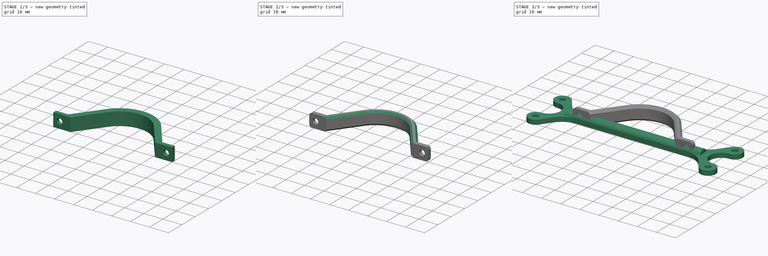
[diagram: build sequence overview — one tinted view per stage of 3, left to right]
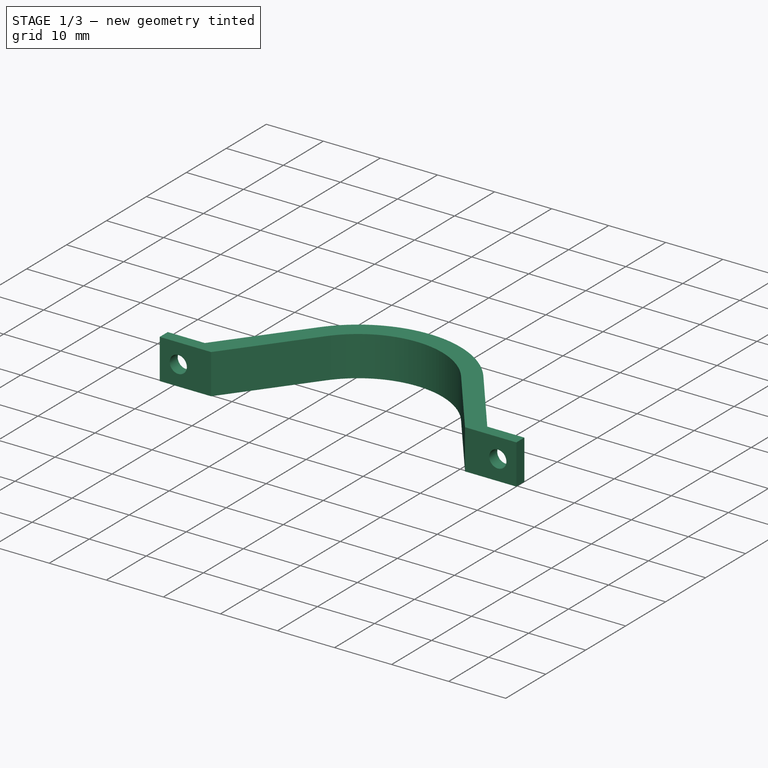
[diagram: stage 1 of 3 — iso view after this stage's code; geometry added in this stage tinted green]
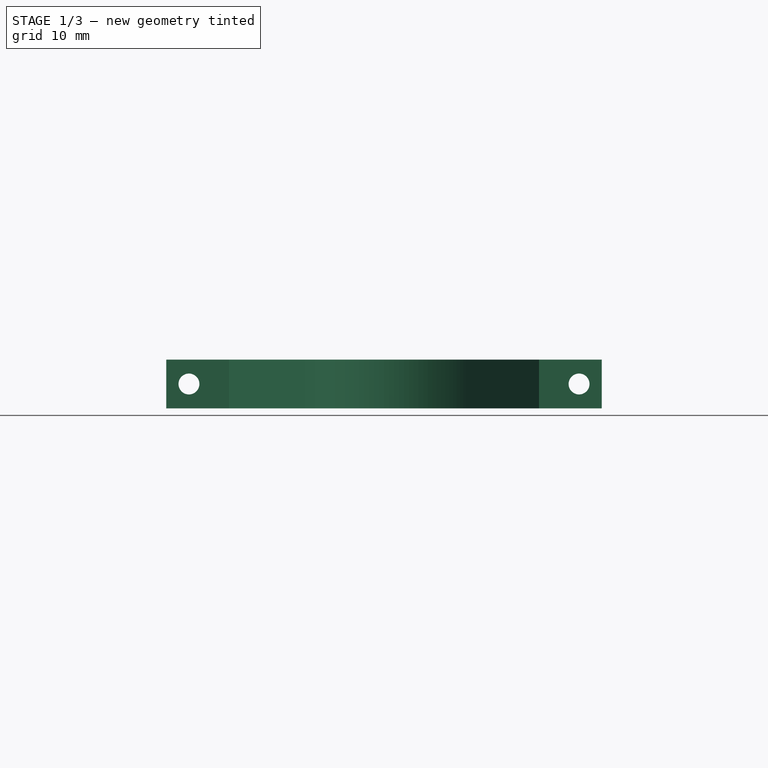
[diagram: stage 1 of 3 — front view after this stage's code; geometry added in this stage tinted green]
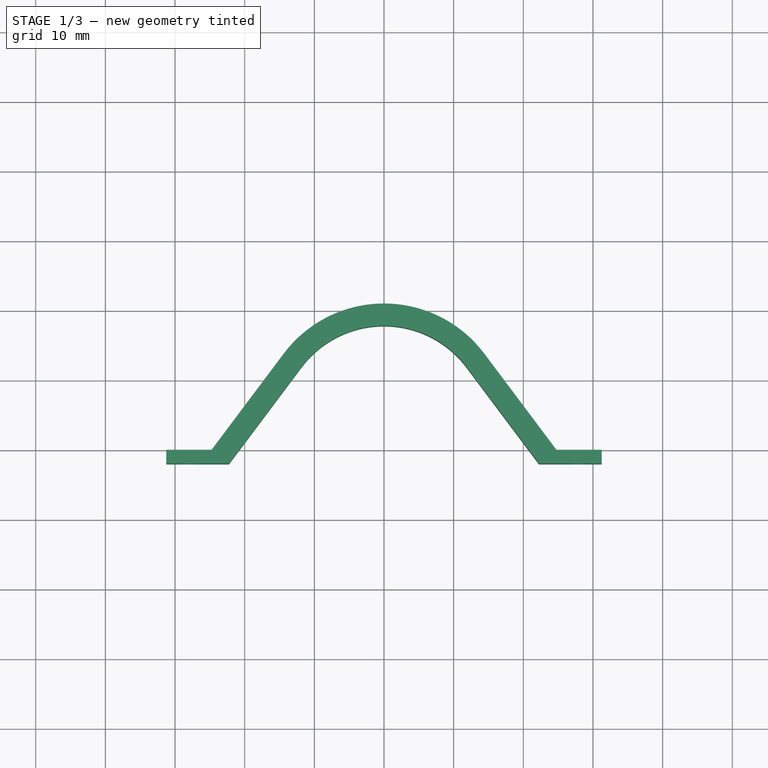
[diagram: stage 1 of 3 — top view after this stage's code; geometry added in this stage tinted green]
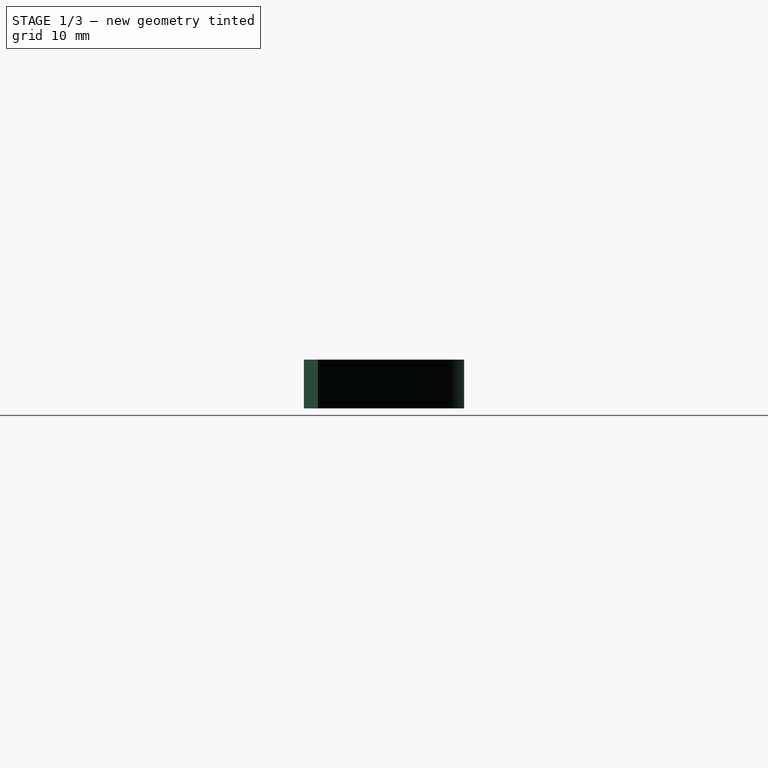
[diagram: stage 1 of 3 — right view after this stage's code; geometry added in this stage tinted green]
FCSTD DOCUMENT  (FreeCAD 0.20R29177 +426 (Git))
Label: turtle_fin
License: All rights reserved
LicenseURL: http://en.wikipedia.org/wiki/All_rights_reserved
objects: Sketcher::SketchObject×4, PartDesign::Pad×3, PartDesign::Body×2, PartDesign::Pocket×1, PartDesign::Fillet×1, PartDesign::Chamfer×1
note: 18 computed .brp shape members not serialized (recipe doc carries the construction recipe); baked Part::Feature solids carry a one-line shape summary decoded from their .brp

FEATURE [Sketcher::SketchObject] Sketch001  label="fin"
  FullyConstrained = true
  MapMode = 5
  Support = -> [XY_Plane]
  sketch-geometry (14):
    g0: LineSegment StartX=-31.25 StartY=0 StartZ=0 EndX=-24.75 EndY=0 EndZ=0
    g1: LineSegment StartX=24.75 StartY=0 StartZ=0 EndX=31.25 EndY=0 EndZ=0
    g2: LineSegment StartX=-31.25 StartY=0 StartZ=0 EndX=-31.25 EndY=-2 EndZ=0
    g3: LineSegment StartX=-31.25 StartY=-2 StartZ=0 EndX=-22.25 EndY=-2 EndZ=0
    g4: LineSegment StartX=31.25 StartY=0 StartZ=0 EndX=31.25 EndY=-2 EndZ=0
    g5: LineSegment StartX=31.25 StartY=-2 StartZ=0 EndX=22.25 EndY=-2 EndZ=0
    g6: GeomPoint X=-28 Y=0 Z=0
    g7: GeomPoint X=28 Y=0 Z=0
    g8: LineSegment StartX=-24.75 StartY=0 StartZ=0 EndX=-14.4 EndY=13.8 EndZ=0
    g9: LineSegment StartX=-22.25 StartY=-2 StartZ=0 EndX=-11.84 EndY=11.88 EndZ=0
    g10: LineSegment StartX=22.25 StartY=-2 StartZ=0 EndX=11.84 EndY=11.88 EndZ=0
    g11: LineSegment StartX=24.75 StartY=0 StartZ=0 EndX=14.4 EndY=13.8 EndZ=0
    g12: ArcOfCircle CenterX=0 CenterY=3 CenterZ=0 NormalX=0 NormalY=0 NormalZ=1 AngleXU=0 Radius=18 StartAngle=0.643501 EndAngle=2.49809
    g13: ArcOfCircle CenterX=0 CenterY=3 CenterZ=0 NormalX=0 NormalY=0 NormalZ=1 AngleXU=0 Radius=14.8 StartAngle=0.643501 EndAngle=2.49809
  constraints (35):
    c: PointOnObject(g0,g-1)
    c: Coincident(g2,g0)
    c: Vertical(g2)
    c: Coincident(g3,g2)
    c: Horizontal(g3)
    c: Distance(g3) = 9
    c: PointOnObject(g0,g-1)
    c: Distance(g2) = 2
    c: Coincident(g4,g1)
    c: Vertical(g4)
    c: Horizontal(g5)
    c: Coincident(g5,g4)
    c: PointOnObject(g1,g-1)
    c: Equal(g5,g3)
    c: Equal(g4,g2)
    c: Symmetric(g1,g1,g7)
    c: Symmetric(g0,g0,g6)
    c: Distance(g6,g7) = 56
    c: DistanceX(g0,g3) = 2.5
    c: PointOnObject(g1,g-1)
    c: Coincident(g8,g0)
    c: Coincident(g9,g3)
    c: Coincident(g10,g5)
    c: Coincident(g11,g1)
    c: Tangent(g13,g9) = 1.5708
    c: Tangent(g12,g8) = 1.5708
    c: Tangent(g13,g10) = -1.5708
    c: Tangent(g12,g11) = -1.5708
    c: PointOnObject(g12,g-2)
    c: Coincident(g12,g13)
    c: Parallel(g9,g8)
    c: Equal(g9,g10)
    c: Equal(g11,g8)
    c: Radius(g12) = 18
    c: DistanceY(g3,g12) = 5
FEATURE [PartDesign::Pad] Pad
  Direction = (0,0,1)
  Length = 7
  Length2 = 10
  Profile = -> Sketch001
  ReferenceAxis = -> Sketch001 [N_Axis]
  Type = 0
FEATURE [Sketcher::SketchObject] Sketch002
  ExternalGeometry = -> [Pad]
  FullyConstrained = true
  MapMode = 45
  Placement = pos=(0,-2,3.5) rot=(0.57735,0.57735,0.57735;4.18879rad)
  Support = -> [Pad]
  sketch-geometry (2):
    g0: Circle CenterX=1.1e-15 CenterY=28 CenterZ=0 NormalX=0 NormalY=0 NormalZ=1 AngleXU=0 Radius=1.5
    g1: Circle CenterX=1.1e-15 CenterY=-28 CenterZ=0 NormalX=0 NormalY=0 NormalZ=1 AngleXU=0 Radius=1.5
  constraints (4):
    c: Equal(g1,g0)
    c: Radius(g0) = 1.5
    c: Symmetric(g-3,g-5,g0)
    c: Symmetric(g0,g1,g-1)
FEATURE [PartDesign::Pocket] Pocket
  BaseFeature = -> Pad
  Direction = (0,-1,0)
  Length = 5
  Length2 = 5
  Midplane = true
  Profile = -> Sketch002
  ReferenceAxis = -> Sketch002 [N_Axis]
  Type = 1
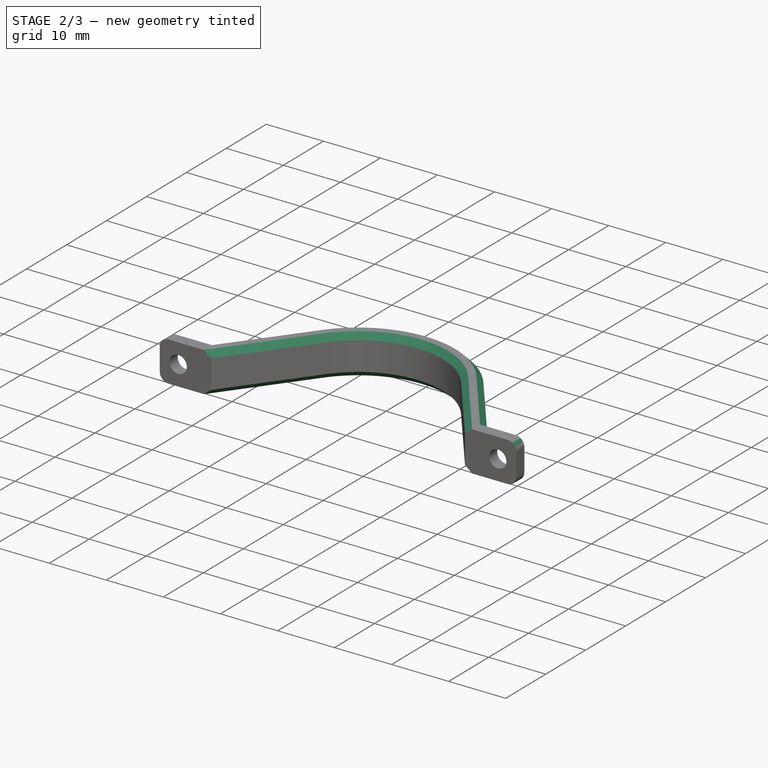
[diagram: stage 2 of 3 — iso view after this stage's code; geometry added in this stage tinted green]
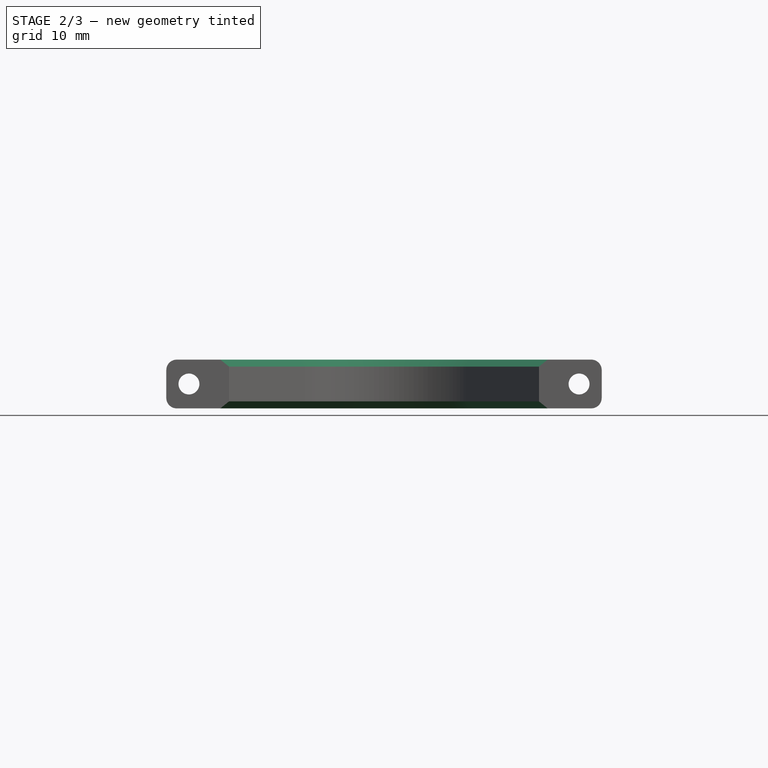
[diagram: stage 2 of 3 — front view after this stage's code; geometry added in this stage tinted green]
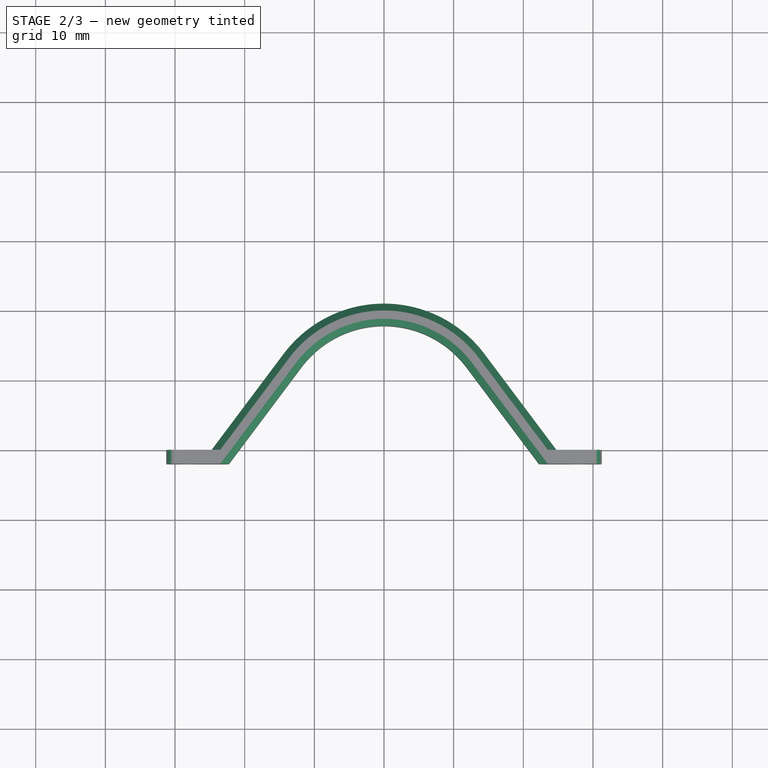
[diagram: stage 2 of 3 — top view after this stage's code; geometry added in this stage tinted green]
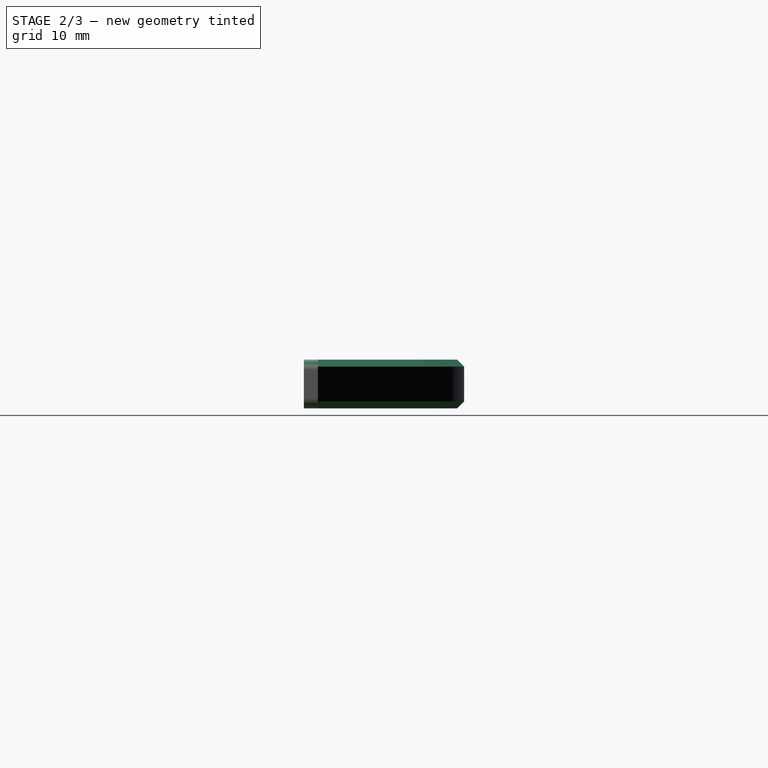
[diagram: stage 2 of 3 — right view after this stage's code; geometry added in this stage tinted green]
FEATURE [PartDesign::Body] Body001  label="turtle_fin_v2"
  Group = -> [Sketch003,Pad001,Sketch004,Pad002]
  Origin = -> Origin001
  Tip = -> Pad002
FEATURE [PartDesign::Fillet] Fillet
  Base = -> Pocket [Edge17,Edge26,Edge3,Edge4]
  BaseFeature = -> Pocket
  Radius = 1.5
  SupportTransform = false
  UseAllEdges = false
FEATURE [PartDesign::Chamfer] Chamfer
  Angle = 45
  Base = -> Fillet [Edge25,Edge23,Edge21,Edge30,Edge32,Edge34,Edge19,Edge20,Edge22,Edge29,Edge28,Edge31]
  BaseFeature = -> Fillet
  ChamferType = 0
  FlipDirection = false
  Size = 1
  Size2 = 1
  SupportTransform = false
  UseAllEdges = false
FEATURE [PartDesign::Body] Body  label="turtle_fin"
  Group = -> [Sketch001,Pad,Sketch002,Pocket,Fillet,Chamfer]
  Origin = -> Origin
  Tip = -> Chamfer
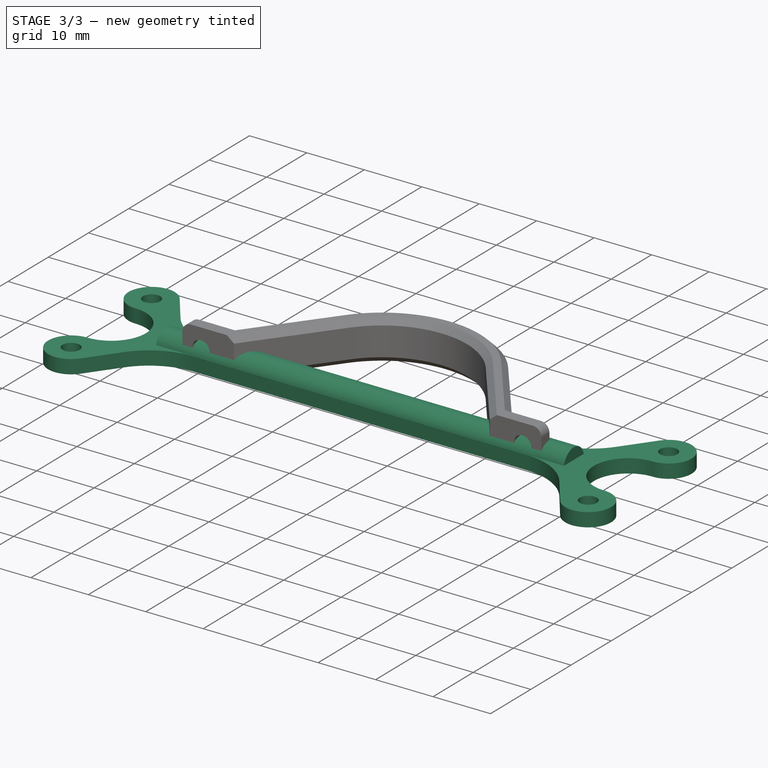
[diagram: stage 3 of 3 — iso view after this stage's code; geometry added in this stage tinted green]
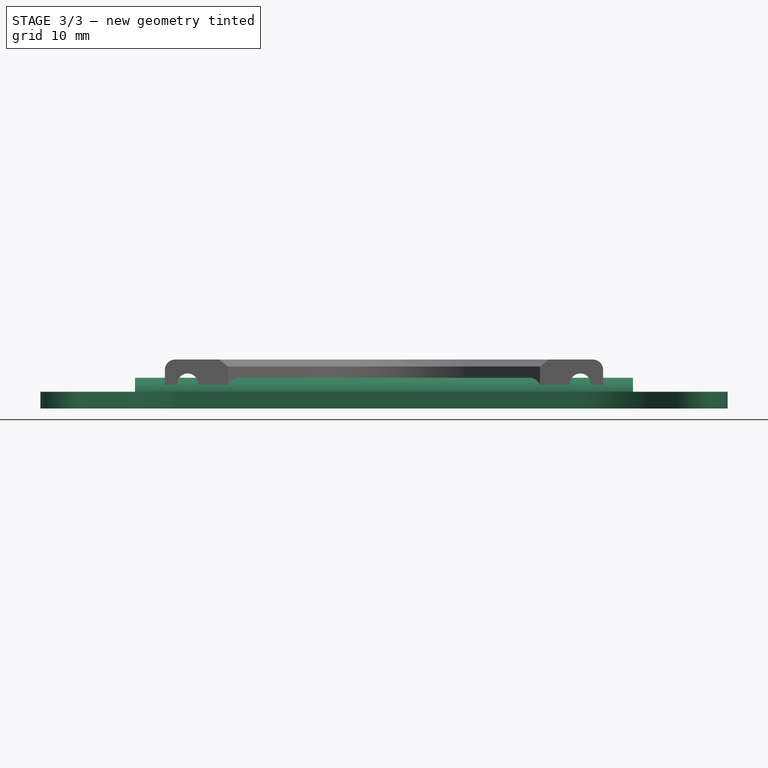
[diagram: stage 3 of 3 — front view after this stage's code; geometry added in this stage tinted green]
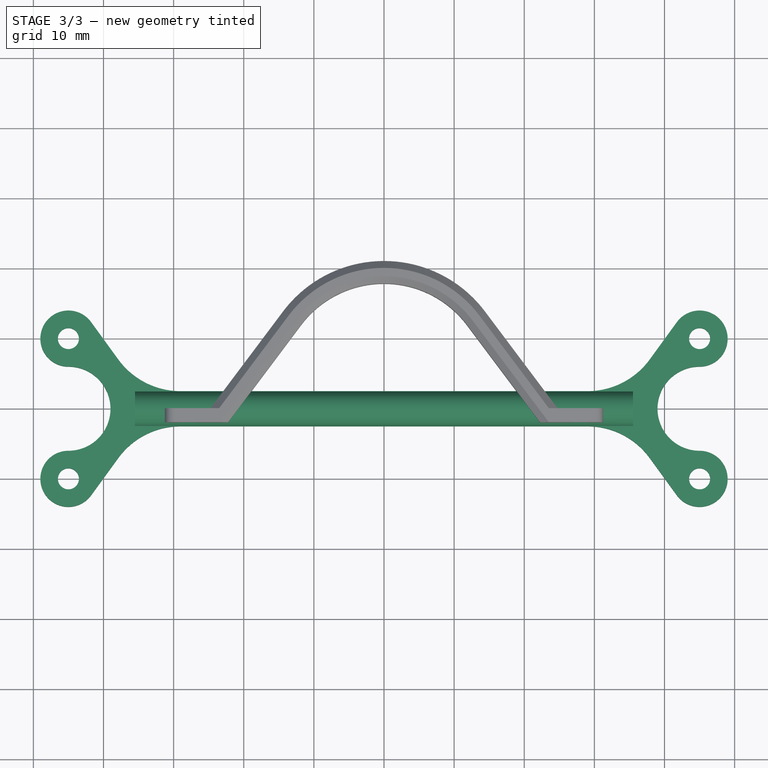
[diagram: stage 3 of 3 — top view after this stage's code; geometry added in this stage tinted green]
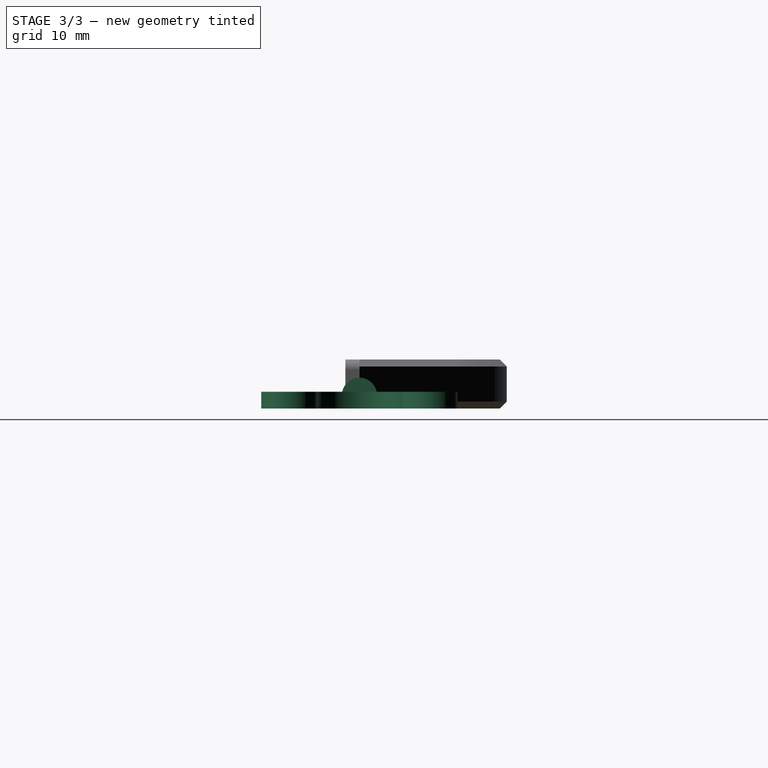
[diagram: stage 3 of 3 — right view after this stage's code; geometry added in this stage tinted green]
FEATURE [Sketcher::SketchObject] Sketch003
  FullyConstrained = true
  MapMode = 5
  Support = -> [XY_Plane001]
  sketch-geometry (20):
    g0: Circle CenterX=-45 CenterY=10 CenterZ=0 NormalX=0 NormalY=0 NormalZ=1 AngleXU=0 Radius=1.5
    g1: Circle CenterX=-45 CenterY=-10 CenterZ=0 NormalX=0 NormalY=0 NormalZ=1 AngleXU=0 Radius=1.5
    g2: Circle CenterX=45 CenterY=10 CenterZ=0 NormalX=0 NormalY=0 NormalZ=1 AngleXU=0 Radius=1.5
    g3: Circle CenterX=45 CenterY=-10 CenterZ=0 NormalX=0 NormalY=0 NormalZ=1 AngleXU=0 Radius=1.5
    g4: ArcOfCircle CenterX=45 CenterY=-10 CenterZ=0 NormalX=0 NormalY=0 NormalZ=1 AngleXU=0 Radius=4 StartAngle=3.77014 EndAngle=7.85398
    g5: ArcOfCircle CenterX=45 CenterY=10 CenterZ=0 NormalX=0 NormalY=0 NormalZ=1 AngleXU=0 Radius=4 StartAngle=4.71239 EndAngle=8.79623
    g6: ArcOfCircle CenterX=-45 CenterY=10 CenterZ=0 NormalX=0 NormalY=0 NormalZ=1 AngleXU=0 Radius=4 StartAngle=0.62855 EndAngle=4.71239
    g7: ArcOfCircle CenterX=-45 CenterY=-10 CenterZ=0 NormalX=0 NormalY=0 NormalZ=1 AngleXU=0 Radius=4 StartAngle=1.5708 EndAngle=5.65464
    g8: ArcOfCircle CenterX=-45 CenterY=1e-16 CenterZ=0 NormalX=0 NormalY=0 NormalZ=1 AngleXU=0 Radius=6 StartAngle=4.71239 EndAngle=7.85398
    g9: ArcOfCircle CenterX=45 CenterY=1e-16 CenterZ=0 NormalX=0 NormalY=0 NormalZ=1 AngleXU=0 Radius=6 StartAngle=1.5708 EndAngle=4.71239
    g10: LineSegment StartX=-41.7645 StartY=-12.3519 StartZ=0 EndX=-37.8977 EndY=-7.0323 EndZ=0
    g11: LineSegment StartX=-41.7645 StartY=12.3519 StartZ=0 EndX=-37.8977 EndY=7.0323 EndZ=0
    g12: LineSegment StartX=41.7645 StartY=12.3519 StartZ=0 EndX=37.8977 EndY=7.0323 EndZ=0
    g13: LineSegment StartX=41.7645 StartY=-12.3519 StartZ=0 EndX=37.8977 EndY=-7.0323 EndZ=0
    g14: ArcOfCircle CenterX=-29 CenterY=13.5 CenterZ=0 NormalX=0 NormalY=0 NormalZ=1 AngleXU=0 Radius=11 StartAngle=3.77014 EndAngle=4.71239
    g15: ArcOfCircle CenterX=-29 CenterY=-13.5 CenterZ=0 NormalX=0 NormalY=0 NormalZ=1 AngleXU=0 Radius=11 StartAngle=1.5708 EndAngle=2.51304
    g16: ArcOfCircle CenterX=29 CenterY=-13.5 CenterZ=0 NormalX=0 NormalY=0 NormalZ=1 AngleXU=0 Radius=11 StartAngle=0.62855 EndAngle=1.5708
    g17: ArcOfCircle CenterX=29 CenterY=13.5 CenterZ=0 NormalX=0 NormalY=0 NormalZ=1 AngleXU=0 Radius=11 StartAngle=4.71239 EndAngle=5.65464
    g18: LineSegment StartX=-29 StartY=-2.5 StartZ=0 EndX=29 EndY=-2.5 EndZ=0
    g19: LineSegment StartX=29 StartY=2.5 StartZ=0 EndX=-29 EndY=2.5 EndZ=0
  constraints (43):
    c: Coincident(g4,g3)
    c: Coincident(g5,g2)
    c: Coincident(g6,g0)
    c: Coincident(g7,g1)
    c: Symmetric(g3,g1,g-2)
    c: Symmetric(g2,g0,g-2)
    c: Symmetric(g1,g0,g-1)
    c: Distance(g0,g1) = 20
    c: Radius(g1) = 1.5
    c: Radius(g7) = 4
    c: Equal(g1,g0)
    c: Equal(g0,g2)
    c: Equal(g2,g3)
    c: Equal(g6,g7)
    c: Equal(g7,g5)
    c: DistanceX(g1,g3) = 90
    c: Symmetric(g9,g8,g-2)
    c: Symmetric(g13,g10,g-2)
    c: Symmetric(g12,g11,g-2)
    c: Symmetric(g10,g11,g-1)
    c: Tangent(g16,g13) = -1.5708
    c: Tangent(g17,g12) = 1.5708
    c: Tangent(g15,g10) = 1.5708
    c: Tangent(g14,g11) = -1.5708
    c: Vertical(g14,g15)
    c: Horizontal(g18)
    c: Horizontal(g19)
    c: Tangent(g18,g15) = 1.5708
    c: Tangent(g19,g14) = 1.5708
    c: Tangent(g19,g17) = 1.5708
    c: Tangent(g18,g16) = 1.5708
    c: Distance(g15,g14) = 5
    c: Radius(g15) = 11
    c: DistanceX(g1,g15) = 16
    c: Tangent(g6,g8) = 1.5708
    c: Tangent(g6,g11) = 1.5708
    c: Tangent(g7,g10) = -1.5708
    c: Tangent(g7,g8) = 1.5708
    c: Tangent(g4,g13) = 1.5708
    c: Tangent(g5,g12) = -1.5708
    c: Tangent(g4,g9) = 1.5708
    c: Tangent(g5,g9) = 1.5708
    c: Vertical(g8,g1)
FEATURE [PartDesign::Pad] Pad001
  Direction = (0,0,1)
  Length = 2.4
  Length2 = 10
  Profile = -> Sketch003
  ReferenceAxis = -> Sketch003 [N_Axis]
  Type = 0
FEATURE [Sketcher::SketchObject] Sketch004
  ExternalGeometry = -> [Pad001]
  FullyConstrained = true
  MapMode = 5
  Placement = pos=(0,0,0) rot=(0.57735,0.57735,0.57735;2.0944rad)
  Support = -> [YZ_Plane001]
  sketch-geometry (3):
    g0: LineSegment StartX=-2.5 StartY=2.4 StartZ=0 EndX=2.5 EndY=2.4 EndZ=0
    g1: ArcOfCircle CenterX=1e-16 CenterY=1.9 CenterZ=0 NormalX=0 NormalY=0 NormalZ=1 AngleXU=0 Radius=2.5 StartAngle=0.201358 EndAngle=2.94023
    g2: LineSegment StartX=2.44949 StartY=2.4 StartZ=0 EndX=-2.44949 EndY=2.4 EndZ=0
  constraints (8):
    c: Coincident(g0,g-4)
    c: Coincident(g0,g-3)
    c: PointOnObject(g1,g0)
    c: Symmetric(g1,g1,g-2)
    c: Radius(g1) = 2.5
    c: Distance(g1,g0) = 0.5
    c: Coincident(g2,g1)
    c: Coincident(g2,g1)
FEATURE [PartDesign::Pad] Pad002
  BaseFeature = -> Pad001
  Direction = (1,-2e-16,3e-16)
  Length = 71
  Length2 = 10
  Midplane = true
  Profile = -> Sketch004
  ReferenceAxis = -> Sketch004 [N_Axis]
  Type = 0
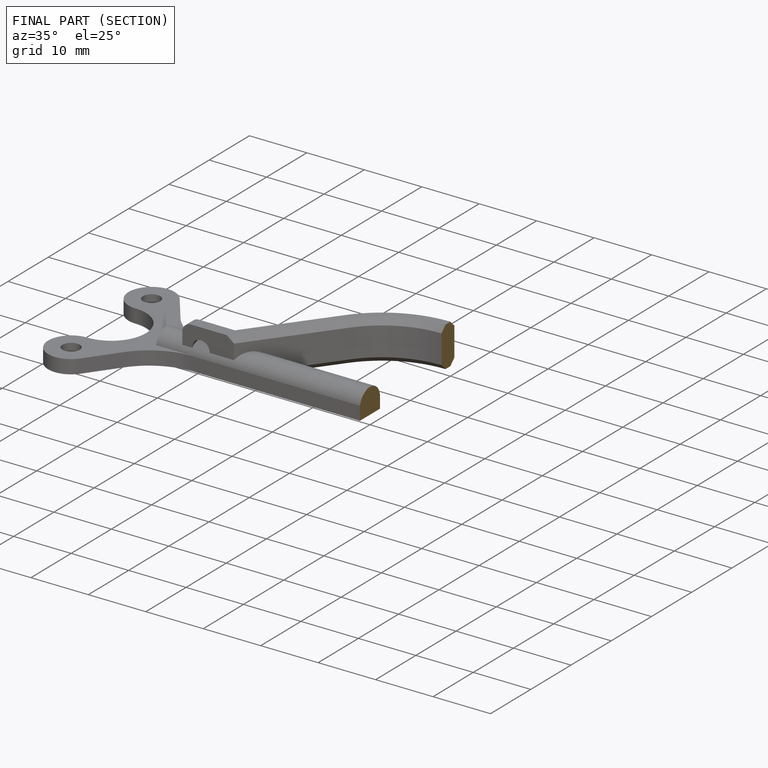
[diagram: finished part — half-section view (interior)]
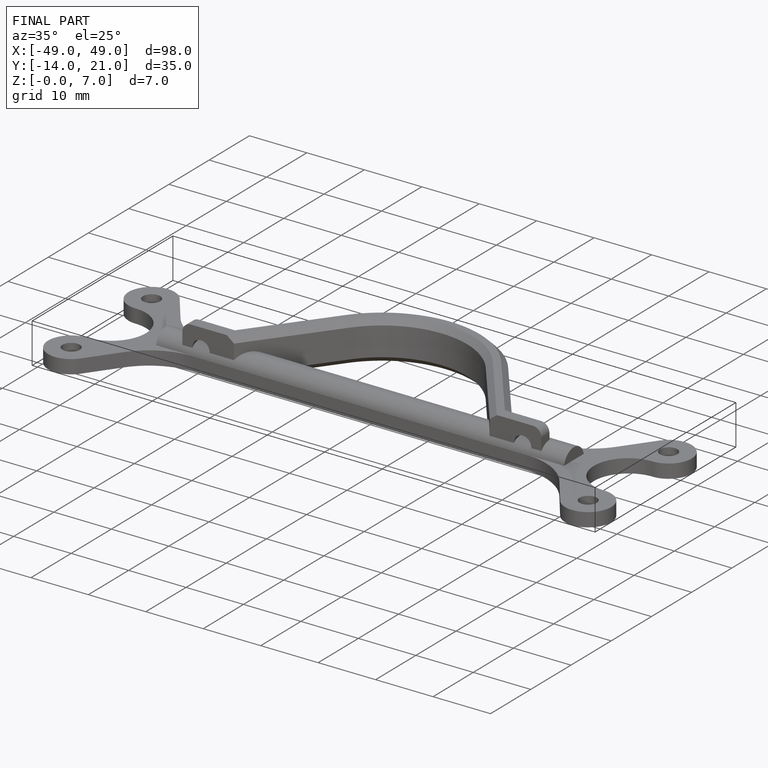
[diagram: finished part — iso view with bounding-box wireframe]
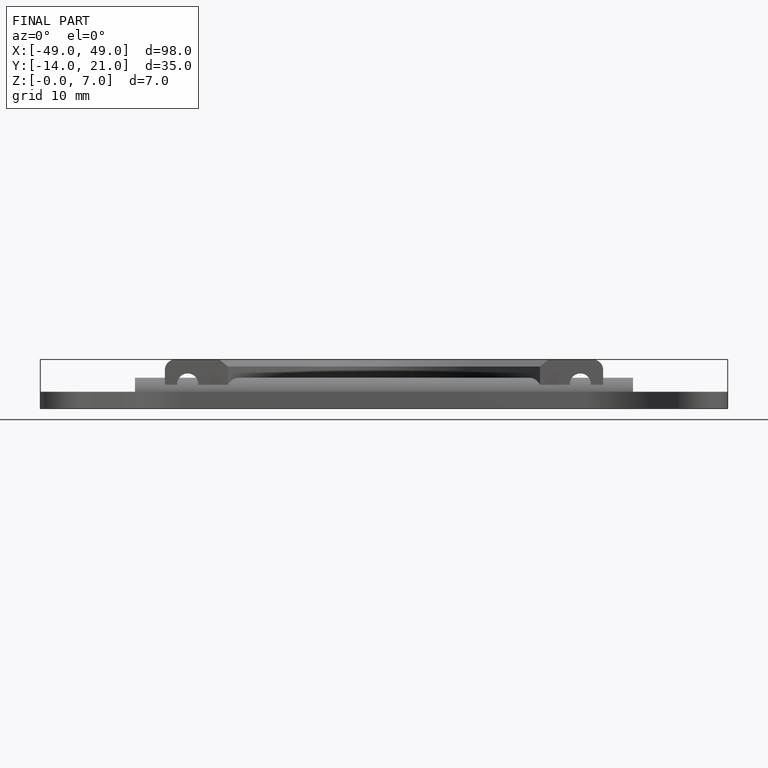
[diagram: finished part — front view with bounding-box wireframe]
